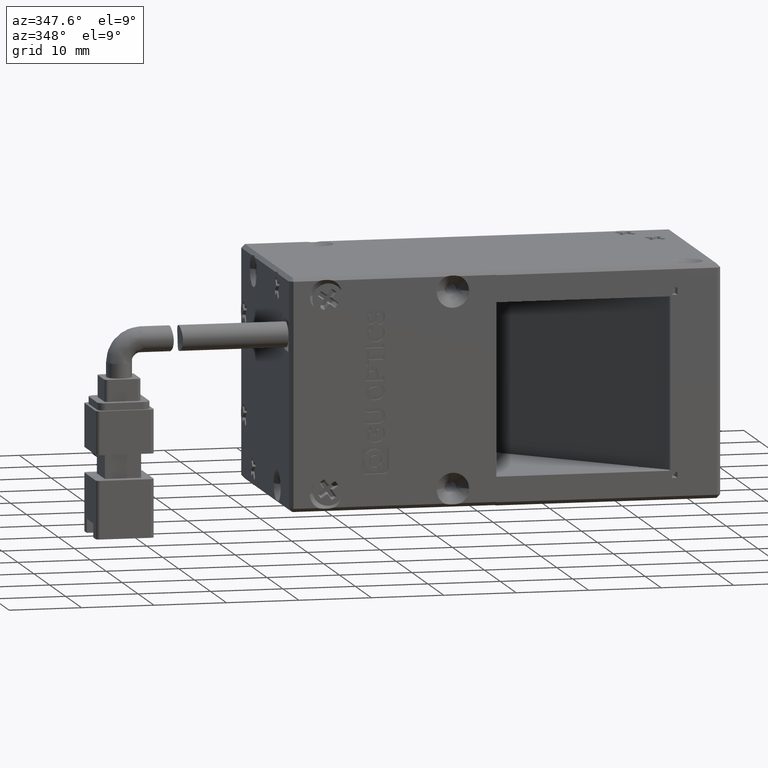
[diagram: clean part render]
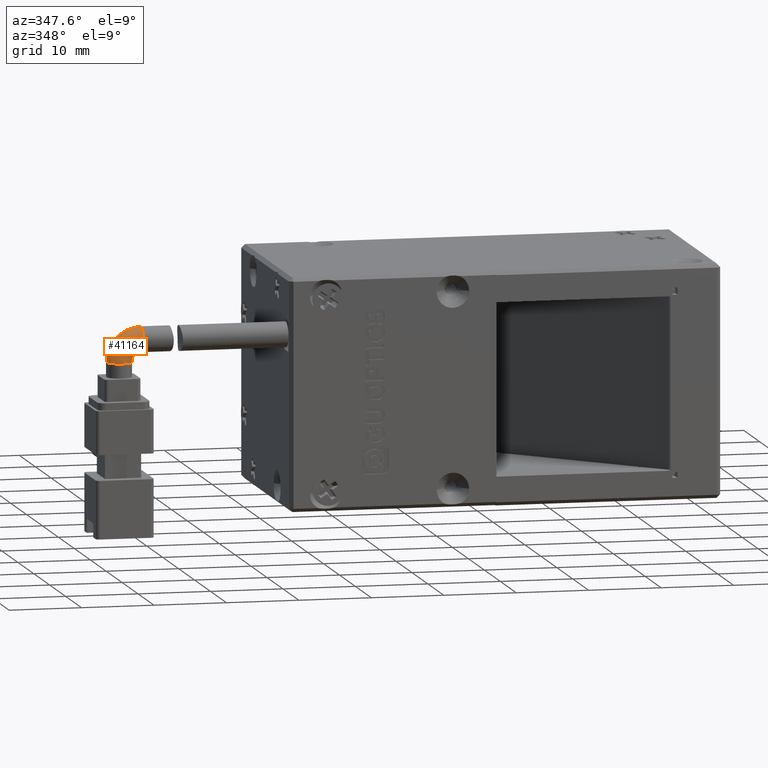
[diagram: same view with one face highlighted and labeled with its STEP entity id]
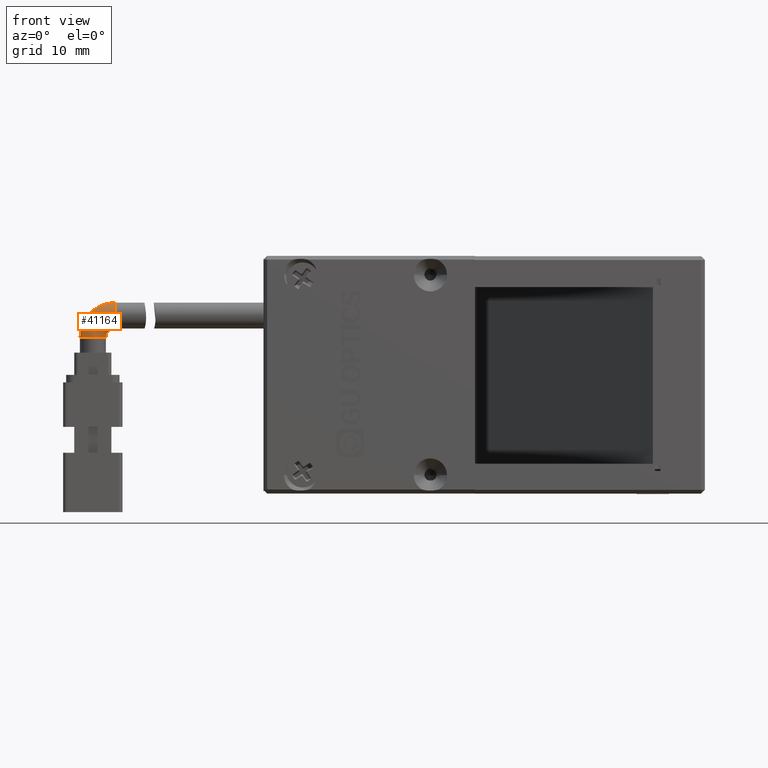
[diagram: same view with one face highlighted and labeled with its STEP entity id]
A machine part, auxiliary view. The second image highlights one B-rep face of the part: STEP entity #41164.
A second angle (front view) of the same face is appended — the face is thin or edge-on in the first view.
In plain terms, the highlighted face is a freeform B-spline surface patch.
Its self-contained STEP definition (entity closure, byte-faithful):
#2525 = CARTESIAN_POINT ( 'NONE',  ( -80.46895663278033300, -28.35000000000004800, 39.76069164156516000 ) ) ;
#3005 = CARTESIAN_POINT ( 'NONE',  ( -80.46895663278033300, -28.35000000000004800, 41.01069164156516700 ) ) ;
#4344 = CARTESIAN_POINT ( 'NONE',  ( -81.71895663278033300, -28.35000000000004800, 39.76069164156516700 ) ) ;
#7313 = DIRECTION ( 'NONE',  ( -2.775557561562894300E-016, -1.089862896423740500E-016, -1.000000000000000000 ) ) ;
#8730 = DIRECTION ( 'NONE',  ( 0.0000000000000000000, 0.0000000000000000000, 1.000000000000000000 ) ) ;
#9425 = ORIENTED_EDGE ( 'NONE', *, *, #78665, .F. ) ;
#10273 = CARTESIAN_POINT ( 'NONE',  ( -85.21895663278034800, -28.35000000000004800, 42.54317722029298200 ) ) ;
#10529 = CARTESIAN_POINT ( 'NONE',  ( -81.20118967981396500, -28.35000000000004800, 41.01069164156516700 ) ) ;
#12464 = ORIENTED_EDGE ( 'NONE', *, *, #26850, .T. ) ;
#12653 = CARTESIAN_POINT ( 'NONE',  ( -80.46895663278033300, -28.35000000000004800, 39.76069164156516000 ) ) ;
#14942 = DIRECTION ( 'NONE',  ( -1.000000000000000000, -7.511771070445235100E-017, 9.130123557772681900E-017 ) ) ;
#16352 = CARTESIAN_POINT ( 'NONE',  ( -80.46895663278031900, -28.35000000000004800, 44.51069164156516700 ) ) ;
#18772 = VERTEX_POINT ( 'NONE', #68219 ) ;
#18776 = DIRECTION ( 'NONE',  ( 0.0000000000000000000, 0.0000000000000000000, 1.000000000000000000 ) ) ;
#22186 = VERTEX_POINT ( 'NONE', #41063 ) ;
#22527 = CARTESIAN_POINT ( 'NONE',  ( -85.21895663278031900, -31.85000000000006500, 42.54317722029297500 ) ) ;
#26850 = EDGE_CURVE ( 'NONE', #62360, #51198, #70996, .T. ) ;
#28663 = CARTESIAN_POINT ( 'NONE',  ( -80.46895663278033300, -31.85000000000006200, 44.51069164156516700 ) ) ;
#28819 = EDGE_CURVE ( 'NONE', #22186, #62360, #72229, .T. ) ;
#33566 = CIRCLE ( 'NONE', #77313, 1.750000000000001600 ) ;
#34850 = CARTESIAN_POINT ( 'NONE',  ( -81.71895663278033300, -31.85000000000006500, 40.49292468859881200 ) ) ;
#36905 = ORIENTED_EDGE ( 'NONE', *, *, #64351, .F. ) ;
#37202 =( BOUNDED_SURFACE ( )  B_SPLINE_SURFACE ( 3, 3, ( 
 ( #40429, #10273, #52969, #16352 ),
 ( #59070, #22527, #65192, #28663 ),
 ( #71344, #34850, #77434, #40954 ),
 ( #4344, #47096, #10529, #53223 ) ),
 .UNSPECIFIED., .F., .F., .F. ) 
 B_SPLINE_SURFACE_WITH_KNOTS ( ( 4, 4 ),
 ( 4, 4 ),
 ( 0.0000000000000000000, 1.000000000000000000 ),
 ( 0.0000000000000000000, 1.000000000000000000 ),
 .UNSPECIFIED. ) 
 GEOMETRIC_REPRESENTATION_ITEM ( )  RATIONAL_B_SPLINE_SURFACE ( (
 ( 1.000000000000000000, 0.8047378541243656000, 0.8047378541243656000, 1.000000000000000000),
 ( 0.3333333333333321500, 0.2682459513747875700, 0.2682459513747875700, 0.3333333333333321500),
 ( 0.3333333333333321500, 0.2682459513747875700, 0.2682459513747875700, 0.3333333333333321500),
 ( 1.000000000000000000, 0.8047378541243656000, 0.8047378541243656000, 1.000000000000000000) ) ) 
 REPRESENTATION_ITEM ( '' )  SURFACE ( )  );
#37375 = FACE_OUTER_BOUND ( 'NONE', #59087, .T. ) ;
#40429 = CARTESIAN_POINT ( 'NONE',  ( -85.21895663278033300, -28.35000000000004800, 39.76069164156518100 ) ) ;
#40954 = CARTESIAN_POINT ( 'NONE',  ( -80.46895663278033300, -31.85000000000006200, 41.01069164156516700 ) ) ;
#41063 = CARTESIAN_POINT ( 'NONE',  ( -81.71895663278030500, -28.35000000000004800, 39.76069164156517400 ) ) ;
#41164 = ADVANCED_FACE ( 'NONE', ( #37375 ), #37202, .T. ) ;
#43878 = CARTESIAN_POINT ( 'NONE',  ( -83.46895663278030500, -28.35000000000006500, 39.76069164156517400 ) ) ;
#45288 = DIRECTION ( 'NONE',  ( -7.511771070445233900E-017, 1.000000000000000000, 1.089862896423737800E-016 ) ) ;
#47004 = CIRCLE ( 'NONE', #55242, 4.750000000000004400 ) ;
#47096 = CARTESIAN_POINT ( 'NONE',  ( -81.71895663278033300, -28.35000000000004800, 40.49292468859881200 ) ) ;
#47180 = AXIS2_PLACEMENT_3D ( 'NONE', #51516, #14942, #57635 ) ;
#50037 = DIRECTION ( 'NONE',  ( -1.000000000000000000, 0.0000000000000000000, 0.0000000000000000000 ) ) ;
#51198 = VERTEX_POINT ( 'NONE', #53245 ) ;
#51516 = CARTESIAN_POINT ( 'NONE',  ( -80.46895663278033300, -28.35000000000004800, 42.76069164156516700 ) ) ;
#52969 = CARTESIAN_POINT ( 'NONE',  ( -83.25144221150810600, -28.35000000000004800, 44.51069164156517400 ) ) ;
#53223 = CARTESIAN_POINT ( 'NONE',  ( -80.46895663278031900, -28.35000000000004800, 41.01069164156516700 ) ) ;
#53245 = CARTESIAN_POINT ( 'NONE',  ( -80.46895663278033300, -28.35000000000004800, 44.51069164156516700 ) ) ;
#55242 = AXIS2_PLACEMENT_3D ( 'NONE', #2525, #45288, #8730 ) ;
#55360 = DIRECTION ( 'NONE',  ( -7.511771070445233900E-017, 1.000000000000000000, 1.089862896423737800E-016 ) ) ;
#57635 = DIRECTION ( 'NONE',  ( 0.0000000000000000000, 0.0000000000000000000, 1.000000000000000000 ) ) ;
#57687 = ORIENTED_EDGE ( 'NONE', *, *, #28819, .T. ) ;
#59070 = CARTESIAN_POINT ( 'NONE',  ( -85.21895663278034800, -31.85000000000006200, 39.76069164156518100 ) ) ;
#59087 = EDGE_LOOP ( 'NONE', ( #9425, #57687, #12464, #36905 ) ) ;
#62360 = VERTEX_POINT ( 'NONE', #3005 ) ;
#64351 = EDGE_CURVE ( 'NONE', #18772, #51198, #47004, .T. ) ;
#65192 = CARTESIAN_POINT ( 'NONE',  ( -83.25144221150810600, -31.85000000000006500, 44.51069164156517400 ) ) ;
#68219 = CARTESIAN_POINT ( 'NONE',  ( -85.21895663278033300, -28.35000000000004800, 39.76069164156517400 ) ) ;
#69318 = AXIS2_PLACEMENT_3D ( 'NONE', #12653, #55360, #18776 ) ;
#70996 = CIRCLE ( 'NONE', #47180, 1.750000000000001600 ) ;
#71344 = CARTESIAN_POINT ( 'NONE',  ( -81.71895663278033300, -31.85000000000006200, 39.76069164156517400 ) ) ;
#72229 = CIRCLE ( 'NONE', #69318, 1.250000000000001100 ) ;
#77313 = AXIS2_PLACEMENT_3D ( 'NONE', #43878, #7313, #50037 ) ;
#77434 = CARTESIAN_POINT ( 'NONE',  ( -81.20118967981395000, -31.85000000000006500, 41.01069164156517400 ) ) ;
#78665 = EDGE_CURVE ( 'NONE', #22186, #18772, #33566, .T. ) ;